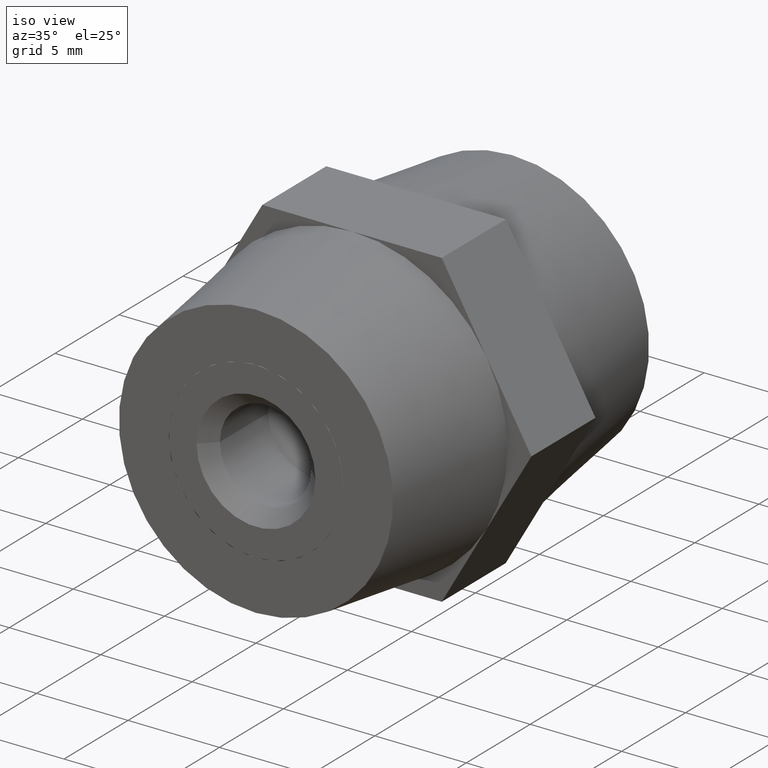
[diagram: clean part render]
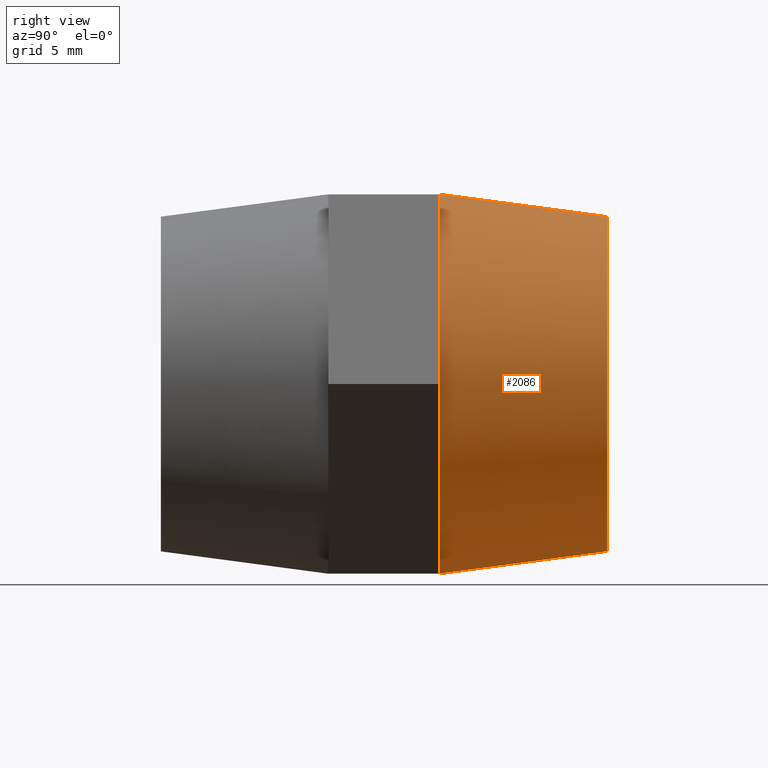
[diagram: tour spotlight — one face highlighted and labeled with its STEP entity id]
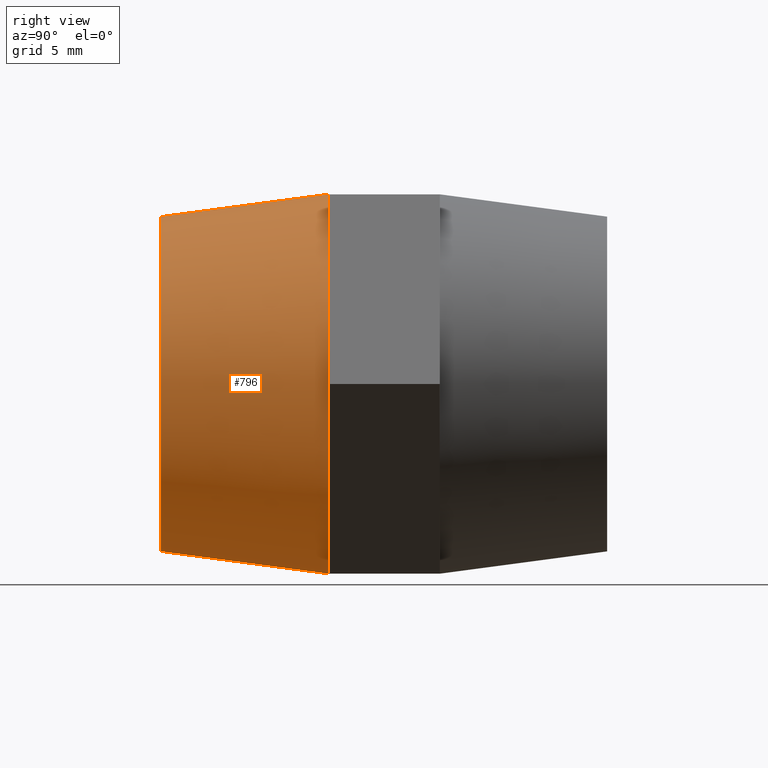
[diagram: tour spotlight — one face highlighted and labeled with its STEP entity id]
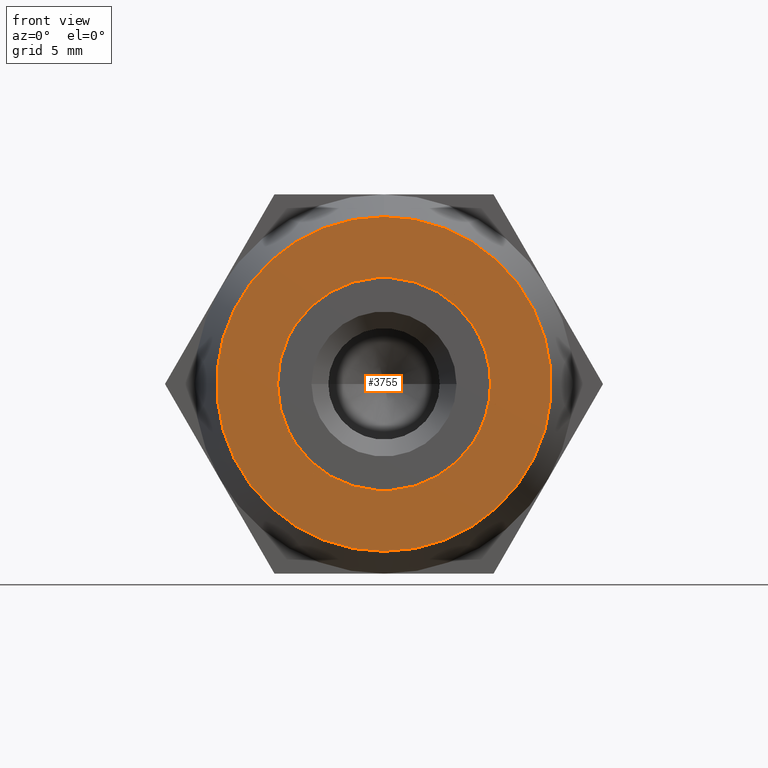
[diagram: tour spotlight — one face highlighted and labeled with its STEP entity id]
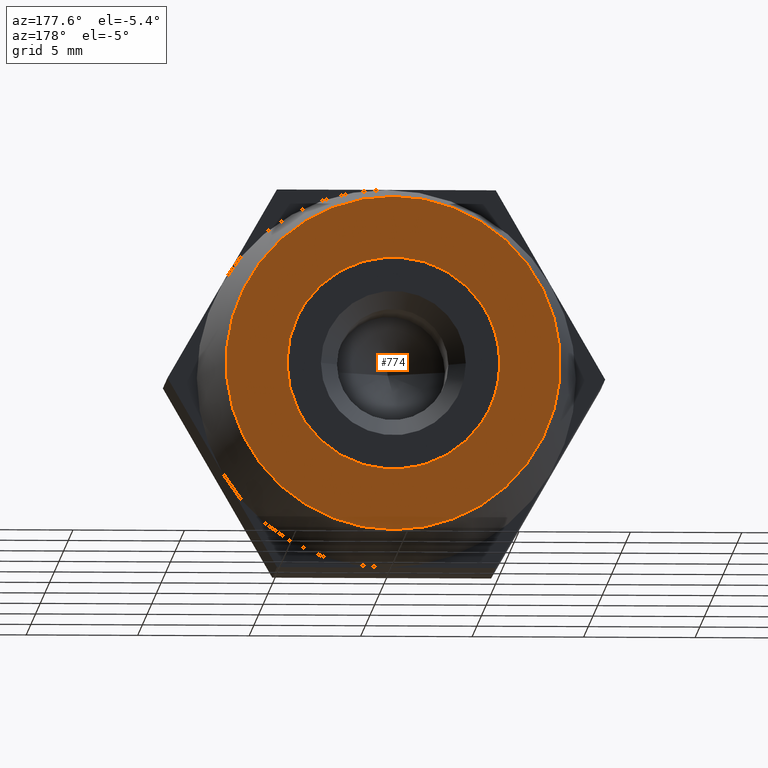
[diagram: tour spotlight — one face highlighted and labeled with its STEP entity id]
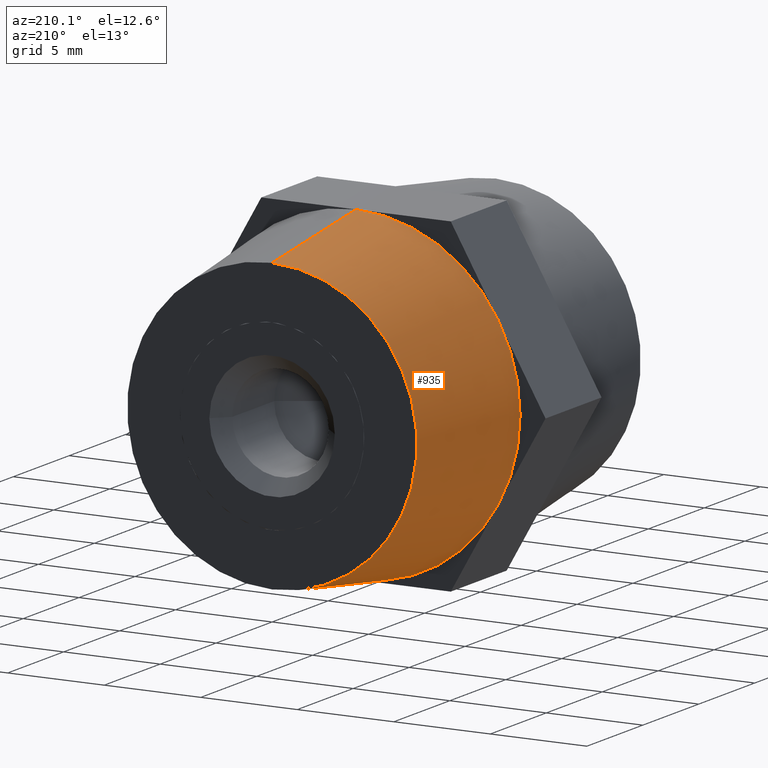
[diagram: tour spotlight — one face highlighted and labeled with its STEP entity id]
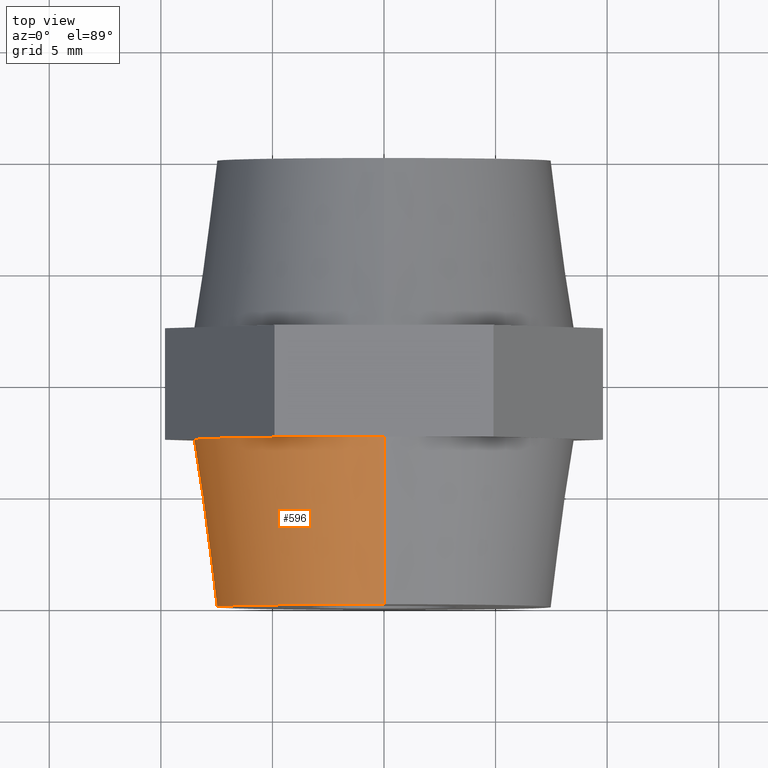
[diagram: tour spotlight — one face highlighted and labeled with its STEP entity id]
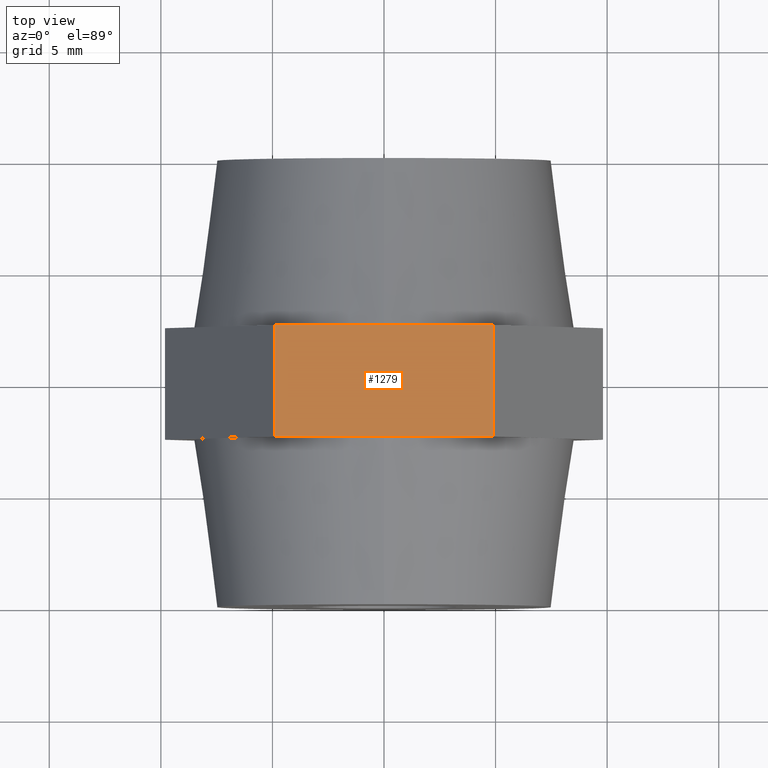
[diagram: tour spotlight — one face highlighted and labeled with its STEP entity id]
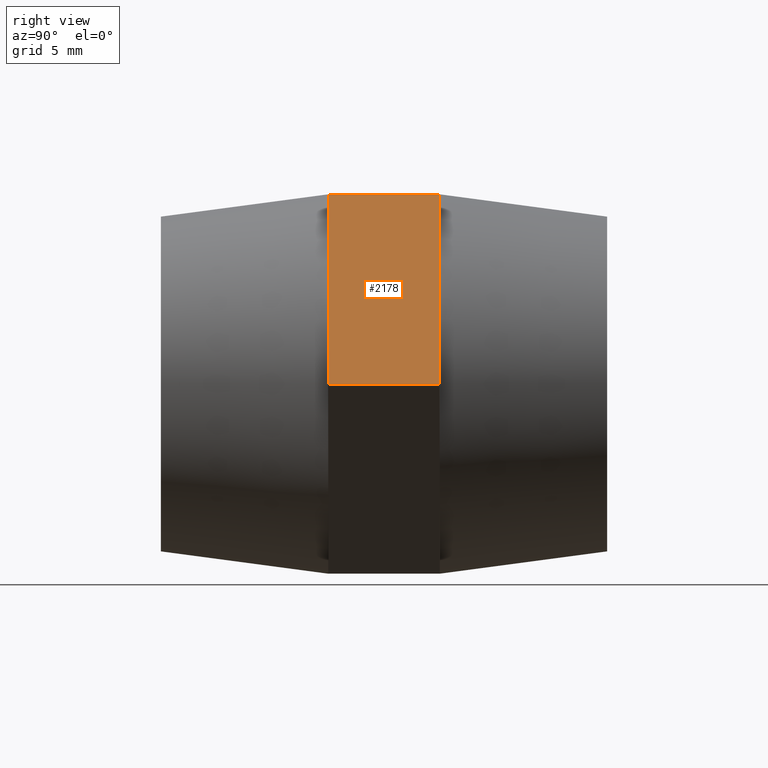
[diagram: tour spotlight — one face highlighted and labeled with its STEP entity id]
A machine part: a face-by-face anatomy tour. The part has 162 B-rep faces; the first image is the clean iso view, then the 8 largest visible faces are spotlighted one at a time (largest first), each with its STEP entity span.

Face 1 — right view, entity #2086. In plain terms, the highlighted conical surface has half-angle 7.595 deg.
Definition (entity closure, byte-faithful):
#17 = DIRECTION ( 'NONE',  ( 0.0000000000000000000, 1.000000000000000000, 0.0000000000000000000 ) ) ;
#30 = ORIENTED_EDGE ( 'NONE', *, *, #1495, .F. ) ;
#138 = DIRECTION ( 'NONE',  ( 0.0000000000000000000, 1.000000000000000000, 0.0000000000000000000 ) ) ;
#169 = DIRECTION ( 'NONE',  ( 0.0000000000000000000, 0.0000000000000000000, 1.000000000000000000 ) ) ;
#279 = AXIS2_PLACEMENT_3D ( 'NONE', #564, #864, #2947 ) ;
#303 = CARTESIAN_POINT ( 'NONE',  ( 9.797174393178825700E-016, 10.00000000000000000, 7.500000000000000000 ) ) ;
#498 = CARTESIAN_POINT ( 'NONE',  ( 0.0000000000000000000, 2.500000000000000000, 0.0000000000000000000 ) ) ;
#564 = CARTESIAN_POINT ( 'NONE',  ( 0.0000000000000000000, 10.00000000000000000, 0.0000000000000000000 ) ) ;
#660 = LINE ( 'NONE', #2397, #3558 ) ;
#720 = AXIS2_PLACEMENT_3D ( 'NONE', #1864, #138, #1610 ) ;
#835 = ORIENTED_EDGE ( 'NONE', *, *, #2571, .T. ) ;
#864 = DIRECTION ( 'NONE',  ( 0.0000000000000000000, 1.000000000000000000, 0.0000000000000000000 ) ) ;
#926 = VERTEX_POINT ( 'NONE', #1880 ) ;
#992 = AXIS2_PLACEMENT_3D ( 'NONE', #3620, #1544, #3024 ) ;
#1125 = EDGE_CURVE ( 'NONE', #1895, #1674, #1331, .T. ) ;
#1174 = CARTESIAN_POINT ( 'NONE',  ( 7.361215932167730200, 2.500000000000000000, -4.250000000000000000 ) ) ;
#1226 = CONICAL_SURFACE ( 'NONE', #992, 7.500000000000000000, 0.1325515322966740500 ) ;
#1331 = LINE ( 'NONE', #2730, #3747 ) ;
#1495 = EDGE_CURVE ( 'NONE', #926, #1624, #660, .T. ) ;
#1529 = DIRECTION ( 'NONE',  ( 0.0000000000000000000, 0.0000000000000000000, 1.000000000000000000 ) ) ;
#1544 = DIRECTION ( 'NONE',  ( 0.0000000000000000000, -1.000000000000000000, 0.0000000000000000000 ) ) ;
#1610 = DIRECTION ( 'NONE',  ( 0.0000000000000000000, 0.0000000000000000000, 1.000000000000000000 ) ) ;
#1624 = VERTEX_POINT ( 'NONE', #3351 ) ;
#1674 = VERTEX_POINT ( 'NONE', #2555 ) ;
#1787 = DIRECTION ( 'NONE',  ( 0.0000000000000000000, -0.9912279006826346700, -0.1321637200910179600 ) ) ;
#1864 = CARTESIAN_POINT ( 'NONE',  ( 0.0000000000000000000, 2.500000000000000000, 0.0000000000000000000 ) ) ;
#1880 = CARTESIAN_POINT ( 'NONE',  ( 0.0000000000000000000, 10.00000000000000000, -7.500000000000000000 ) ) ;
#1895 = VERTEX_POINT ( 'NONE', #303 ) ;
#1925 = FACE_OUTER_BOUND ( 'NONE', #3170, .T. ) ;
#1967 = EDGE_CURVE ( 'NONE', #1895, #926, #2439, .T. ) ;
#2060 = EDGE_CURVE ( 'NONE', #2840, #3218, #3788, .T. ) ;
#2086 = ADVANCED_FACE ( 'NONE', ( #1925 ), #1226, .T. ) ;
#2374 = AXIS2_PLACEMENT_3D ( 'NONE', #3333, #17, #1529 ) ;
#2397 = CARTESIAN_POINT ( 'NONE',  ( 0.0000000000000000000, 10.00000000000000000, -7.500000000000000000 ) ) ;
#2439 = CIRCLE ( 'NONE', #279, 7.500000000000000000 ) ;
#2555 = CARTESIAN_POINT ( 'NONE',  ( -1.502314598737160000E-015, 2.500000000000000000, 8.500000000000000000 ) ) ;
#2571 = EDGE_CURVE ( 'NONE', #3218, #1624, #3635, .T. ) ;
#2730 = CARTESIAN_POINT ( 'NONE',  ( 9.184850993605147900E-016, 10.00000000000000000, 7.500000000000000000 ) ) ;
#2840 = VERTEX_POINT ( 'NONE', #3048 ) ;
#2899 = EDGE_CURVE ( 'NONE', #1674, #2840, #3187, .T. ) ;
#2910 = ORIENTED_EDGE ( 'NONE', *, *, #1967, .F. ) ;
#2947 = DIRECTION ( 'NONE',  ( 0.0000000000000000000, 0.0000000000000000000, 1.000000000000000000 ) ) ;
#3024 = DIRECTION ( 'NONE',  ( 0.0000000000000000000, 0.0000000000000000000, -1.000000000000000000 ) ) ;
#3048 = CARTESIAN_POINT ( 'NONE',  ( 7.361215932167730200, 2.500000000000000000, 4.250000000000000000 ) ) ;
#3170 = EDGE_LOOP ( 'NONE', ( #2910, #3766, #3564, #3251, #835, #30 ) ) ;
#3187 = CIRCLE ( 'NONE', #720, 8.500000000000000000 ) ;
#3218 = VERTEX_POINT ( 'NONE', #1174 ) ;
#3251 = ORIENTED_EDGE ( 'NONE', *, *, #2060, .T. ) ;
#3333 = CARTESIAN_POINT ( 'NONE',  ( 0.0000000000000000000, 2.500000000000000000, 0.0000000000000000000 ) ) ;
#3351 = CARTESIAN_POINT ( 'NONE',  ( 0.0000000000000000000, 2.500000000000000000, -8.500000000000000000 ) ) ;
#3353 = AXIS2_PLACEMENT_3D ( 'NONE', #498, #3759, #169 ) ;
#3558 = VECTOR ( 'NONE', #1787, 1000.000000000000100 ) ;
#3564 = ORIENTED_EDGE ( 'NONE', *, *, #2899, .T. ) ;
#3620 = CARTESIAN_POINT ( 'NONE',  ( 0.0000000000000000000, 10.00000000000000000, 0.0000000000000000000 ) ) ;
#3635 = CIRCLE ( 'NONE', #3353, 8.500000000000000000 ) ;
#3728 = DIRECTION ( 'NONE',  ( 1.618538767728719100E-017, -0.9912279006826346700, 0.1321637200910179600 ) ) ;
#3747 = VECTOR ( 'NONE', #3728, 1000.000000000000100 ) ;
#3759 = DIRECTION ( 'NONE',  ( 0.0000000000000000000, 1.000000000000000000, 0.0000000000000000000 ) ) ;
#3766 = ORIENTED_EDGE ( 'NONE', *, *, #1125, .T. ) ;
#3788 = CIRCLE ( 'NONE', #2374, 8.500000000000000000 ) ;

Face 2 — right view, entity #796. In plain terms, the highlighted conical surface has half-angle 7.595 deg.
Definition (entity closure, byte-faithful):
#35 = CARTESIAN_POINT ( 'NONE',  ( 0.0000000000000000000, -2.500000000000000000, 8.500000000000000000 ) ) ;
#71 = ORIENTED_EDGE ( 'NONE', *, *, #3103, .F. ) ;
#118 = ORIENTED_EDGE ( 'NONE', *, *, #1644, .T. ) ;
#121 = AXIS2_PLACEMENT_3D ( 'NONE', #1607, #1058, #2839 ) ;
#208 = LINE ( 'NONE', #409, #2581 ) ;
#248 = DIRECTION ( 'NONE',  ( 0.0000000000000000000, 0.0000000000000000000, 1.000000000000000000 ) ) ;
#250 = AXIS2_PLACEMENT_3D ( 'NONE', #1373, #3688, #3405 ) ;
#319 = ORIENTED_EDGE ( 'NONE', *, *, #3492, .F. ) ;
#332 = CIRCLE ( 'NONE', #250, 7.500000000000000000 ) ;
#354 = VERTEX_POINT ( 'NONE', #2675 ) ;
#409 = CARTESIAN_POINT ( 'NONE',  ( 1.040949779275250100E-015, -2.500000000000000000, -8.500000000000000000 ) ) ;
#598 = VERTEX_POINT ( 'NONE', #3139 ) ;
#729 = VERTEX_POINT ( 'NONE', #1412 ) ;
#768 = DIRECTION ( 'NONE',  ( 0.0000000000000000000, 0.0000000000000000000, 1.000000000000000000 ) ) ;
#775 = VECTOR ( 'NONE', #1234, 1000.000000000000100 ) ;
#796 = ADVANCED_FACE ( 'NONE', ( #3601 ), #1000, .T. ) ;
#810 = EDGE_CURVE ( 'NONE', #2912, #354, #2446, .T. ) ;
#837 = CARTESIAN_POINT ( 'NONE',  ( 7.361215932167730200, -2.500000000000000000, -4.250000000000000000 ) ) ;
#855 = DIRECTION ( 'NONE',  ( 0.0000000000000000000, 1.000000000000000000, 0.0000000000000000000 ) ) ;
#1000 = CONICAL_SURFACE ( 'NONE', #2206, 8.500000000000000000, 0.1325515322966744100 ) ;
#1058 = DIRECTION ( 'NONE',  ( 0.0000000000000000000, 1.000000000000000000, 0.0000000000000000000 ) ) ;
#1129 = AXIS2_PLACEMENT_3D ( 'NONE', #2547, #3432, #768 ) ;
#1149 = EDGE_CURVE ( 'NONE', #3654, #2733, #2874, .T. ) ;
#1234 = DIRECTION ( 'NONE',  ( 0.0000000000000000000, 0.9912279006826346700, 0.1321637200910183700 ) ) ;
#1301 = ORIENTED_EDGE ( 'NONE', *, *, #2472, .T. ) ;
#1373 = CARTESIAN_POINT ( 'NONE',  ( 0.0000000000000000000, -10.00000000000000000, 0.0000000000000000000 ) ) ;
#1412 = CARTESIAN_POINT ( 'NONE',  ( 0.0000000000000000000, -2.500000000000000000, -8.500000000000000000 ) ) ;
#1519 = ORIENTED_EDGE ( 'NONE', *, *, #1149, .F. ) ;
#1607 = CARTESIAN_POINT ( 'NONE',  ( 0.0000000000000000000, -2.500000000000000000, 0.0000000000000000000 ) ) ;
#1644 = EDGE_CURVE ( 'NONE', #2912, #598, #332, .T. ) ;
#1709 = CARTESIAN_POINT ( 'NONE',  ( 0.0000000000000000000, -2.500000000000000000, 0.0000000000000000000 ) ) ;
#1806 = DIRECTION ( 'NONE',  ( 0.0000000000000000000, 0.0000000000000000000, 1.000000000000000000 ) ) ;
#1837 = CARTESIAN_POINT ( 'NONE',  ( 0.0000000000000000000, -2.500000000000000000, 0.0000000000000000000 ) ) ;
#1912 = CARTESIAN_POINT ( 'NONE',  ( 0.0000000000000000000, -10.00000000000000000, 7.500000000000000000 ) ) ;
#2096 = ORIENTED_EDGE ( 'NONE', *, *, #810, .F. ) ;
#2206 = AXIS2_PLACEMENT_3D ( 'NONE', #1837, #3310, #1806 ) ;
#2300 = CARTESIAN_POINT ( 'NONE',  ( 7.361215932167730200, -2.500000000000000000, 4.250000000000000000 ) ) ;
#2446 = LINE ( 'NONE', #35, #775 ) ;
#2472 = EDGE_CURVE ( 'NONE', #598, #729, #208, .T. ) ;
#2547 = CARTESIAN_POINT ( 'NONE',  ( 0.0000000000000000000, -2.500000000000000000, 0.0000000000000000000 ) ) ;
#2581 = VECTOR ( 'NONE', #2816, 1000.000000000000100 ) ;
#2662 = EDGE_LOOP ( 'NONE', ( #118, #1301, #71, #1519, #319, #2096 ) ) ;
#2675 = CARTESIAN_POINT ( 'NONE',  ( -1.502314598737160000E-015, -2.500000000000000000, 8.500000000000000000 ) ) ;
#2733 = VERTEX_POINT ( 'NONE', #837 ) ;
#2816 = DIRECTION ( 'NONE',  ( 1.618538767728723700E-017, 0.9912279006826346700, -0.1321637200910183700 ) ) ;
#2839 = DIRECTION ( 'NONE',  ( 0.0000000000000000000, 0.0000000000000000000, 1.000000000000000000 ) ) ;
#2874 = CIRCLE ( 'NONE', #3624, 8.500000000000000000 ) ;
#2912 = VERTEX_POINT ( 'NONE', #1912 ) ;
#3103 = EDGE_CURVE ( 'NONE', #2733, #729, #3787, .T. ) ;
#3139 = CARTESIAN_POINT ( 'NONE',  ( 9.797174393178825700E-016, -10.00000000000000000, -7.500000000000000900 ) ) ;
#3310 = DIRECTION ( 'NONE',  ( 0.0000000000000000000, 1.000000000000000000, 0.0000000000000000000 ) ) ;
#3314 = CIRCLE ( 'NONE', #121, 8.500000000000000000 ) ;
#3405 = DIRECTION ( 'NONE',  ( 0.0000000000000000000, 0.0000000000000000000, 1.000000000000000000 ) ) ;
#3432 = DIRECTION ( 'NONE',  ( 0.0000000000000000000, 1.000000000000000000, 0.0000000000000000000 ) ) ;
#3492 = EDGE_CURVE ( 'NONE', #354, #3654, #3314, .T. ) ;
#3601 = FACE_OUTER_BOUND ( 'NONE', #2662, .T. ) ;
#3624 = AXIS2_PLACEMENT_3D ( 'NONE', #1709, #855, #248 ) ;
#3654 = VERTEX_POINT ( 'NONE', #2300 ) ;
#3688 = DIRECTION ( 'NONE',  ( 0.0000000000000000000, 1.000000000000000000, 0.0000000000000000000 ) ) ;
#3787 = CIRCLE ( 'NONE', #1129, 8.500000000000000000 ) ;

Face 3 — front view, entity #3755. In plain terms, the highlighted planar face has unit normal (0, -1, 0).
Definition (entity closure, byte-faithful):
#62 = CARTESIAN_POINT ( 'NONE',  ( -5.999445985523400400, -10.00000000000000000, 0.8663452641916380400 ) ) ;
#68 = CARTESIAN_POINT ( 'NONE',  ( -4.278839962089940700, -10.00000000000000000, 2.113831788204209700 ) ) ;
#89 = CARTESIAN_POINT ( 'NONE',  ( 4.278839962089860700, -10.00000000000000000, 2.113831788204365100 ) ) ;
#178 = CARTESIAN_POINT ( 'NONE',  ( -1.734723475976804900E-015, -10.00000000000000000, -1.734723475976804900E-015 ) ) ;
#250 = AXIS2_PLACEMENT_3D ( 'NONE', #1373, #3688, #3405 ) ;
#256 = LINE ( 'NONE', #62, #1821 ) ;
#312 = VERTEX_POINT ( 'NONE', #1388 ) ;
#326 = ORIENTED_EDGE ( 'NONE', *, *, #1411, .T. ) ;
#332 = CIRCLE ( 'NONE', #250, 7.500000000000000000 ) ;
#394 = CARTESIAN_POINT ( 'NONE',  ( -0.3087879531335669900, -10.00000000000016000, -4.762500000000000200 ) ) ;
#407 = AXIS2_PLACEMENT_3D ( 'NONE', #1265, #3337, #1633 ) ;
#418 = DIRECTION ( 'NONE',  ( -1.776356839400250500E-015, 0.0000000000000000000, -1.000000000000000000 ) ) ;
#441 = DIRECTION ( 'NONE',  ( 0.0000000000000000000, 0.0000000000000000000, -1.000000000000000000 ) ) ;
#487 = LINE ( 'NONE', #3112, #1374 ) ;
#512 = ORIENTED_EDGE ( 'NONE', *, *, #3613, .T. ) ;
#538 = DIRECTION ( 'NONE',  ( -0.0000000000000000000, 1.000000000000000000, -0.0000000000000000000 ) ) ;
#557 = AXIS2_PLACEMENT_3D ( 'NONE', #2026, #538, #2065 ) ;
#558 = CARTESIAN_POINT ( 'NONE',  ( -1.734723475976804900E-015, -10.00000000000000000, -1.734723475976804900E-015 ) ) ;
#566 = DIRECTION ( 'NONE',  ( 0.0000000000000000000, 0.0000000000000000000, -1.000000000000000000 ) ) ;
#571 = AXIS2_PLACEMENT_3D ( 'NONE', #3346, #2464, #418 ) ;
#598 = VERTEX_POINT ( 'NONE', #3139 ) ;
#657 = EDGE_CURVE ( 'NONE', #598, #2912, #1506, .T. ) ;
#699 = CARTESIAN_POINT ( 'NONE',  ( 0.3087879531329260100, -10.00000000000000000, 4.762500000000000200 ) ) ;
#712 = VECTOR ( 'NONE', #2919, 1000.000000000000100 ) ;
#719 = CARTESIAN_POINT ( 'NONE',  ( -1.734723475976804900E-015, -10.00000000000000000, -1.734723475976804900E-015 ) ) ;
#825 = ORIENTED_EDGE ( 'NONE', *, *, #3497, .T. ) ;
#830 = ORIENTED_EDGE ( 'NONE', *, *, #1185, .T. ) ;
#854 = DIRECTION ( 'NONE',  ( 0.0000000000000000000, -1.000000000000000000, 0.0000000000000000000 ) ) ;
#859 = CIRCLE ( 'NONE', #2394, 4.772500000000000000 ) ;
#868 = CARTESIAN_POINT ( 'NONE',  ( -4.278839962090105000, -10.00000000000000000, -2.113831788203874900 ) ) ;
#880 = VERTEX_POINT ( 'NONE', #89 ) ;
#894 = CARTESIAN_POINT ( 'NONE',  ( -7.500000000000000000, -10.00000000000000000, 0.0000000000000000000 ) ) ;
#909 = ORIENTED_EDGE ( 'NONE', *, *, #1259, .T. ) ;
#994 = LINE ( 'NONE', #3207, #3241 ) ;
#1002 = CARTESIAN_POINT ( 'NONE',  ( 2.249445985523425200, -10.00000000000000000, -5.628845264191669500 ) ) ;
#1114 = VERTEX_POINT ( 'NONE', #3586 ) ;
#1185 = EDGE_CURVE ( 'NONE', #3577, #3818, #3146, .T. ) ;
#1216 = CARTESIAN_POINT ( 'NONE',  ( -7.500000000000000000, -10.00000000000000000, 4.762500000000000200 ) ) ;
#1229 = DIRECTION ( 'NONE',  ( 1.000000000000000000, 0.0000000000000000000, -1.261786539621752000E-015 ) ) ;
#1259 = EDGE_CURVE ( 'NONE', #1601, #1114, #3320, .T. ) ;
#1265 = CARTESIAN_POINT ( 'NONE',  ( 0.0000000000000000000, -10.00000000000000000, 0.0000000000000000000 ) ) ;
#1299 = VERTEX_POINT ( 'NONE', #68 ) ;
#1311 = DIRECTION ( 'NONE',  ( -0.5000000000000003300, 0.0000000000000000000, -0.8660254037844383700 ) ) ;
#1366 = CARTESIAN_POINT ( 'NONE',  ( 2.249445985523410100, -10.00000000000000000, 5.628845264191680200 ) ) ;
#1373 = CARTESIAN_POINT ( 'NONE',  ( 0.0000000000000000000, -10.00000000000000000, 0.0000000000000000000 ) ) ;
#1374 = VECTOR ( 'NONE', #1618, 1000.000000000000000 ) ;
#1388 = CARTESIAN_POINT ( 'NONE',  ( -0.3087879531329175100, -10.00000000000000000, 4.762500000000000200 ) ) ;
#1407 = DIRECTION ( 'NONE',  ( 0.4999999999999998900, 0.0000000000000000000, 0.8660254037844387100 ) ) ;
#1411 = EDGE_CURVE ( 'NONE', #1299, #2934, #994, .T. ) ;
#1437 = VERTEX_POINT ( 'NONE', #3302 ) ;
#1456 = CARTESIAN_POINT ( 'NONE',  ( 4.278839962089835000, -10.00000000000000000, -2.113831788204410000 ) ) ;
#1498 = LINE ( 'NONE', #1366, #712 ) ;
#1506 = CIRCLE ( 'NONE', #407, 7.500000000000000000 ) ;
#1567 = VERTEX_POINT ( 'NONE', #394 ) ;
#1591 = EDGE_CURVE ( 'NONE', #3200, #3820, #256, .T. ) ;
#1593 = DIRECTION ( 'NONE',  ( -0.0000000000000000000, 1.000000000000000000, -0.0000000000000000000 ) ) ;
#1601 = VERTEX_POINT ( 'NONE', #699 ) ;
#1612 = AXIS2_PLACEMENT_3D ( 'NONE', #894, #854, #566 ) ;
#1618 = DIRECTION ( 'NONE',  ( -1.000000000000000000, 0.0000000000000000000, 0.0000000000000000000 ) ) ;
#1633 = DIRECTION ( 'NONE',  ( 0.0000000000000000000, 0.0000000000000000000, 1.000000000000000000 ) ) ;
#1644 = EDGE_CURVE ( 'NONE', #2912, #598, #332, .T. ) ;
#1693 = PLANE ( 'NONE',  #1612 ) ;
#1696 = DIRECTION ( 'NONE',  ( -0.0000000000000000000, 1.000000000000000000, -0.0000000000000000000 ) ) ;
#1728 = CIRCLE ( 'NONE', #557, 4.772500000000000000 ) ;
#1765 = CARTESIAN_POINT ( 'NONE',  ( 0.3087879531335345200, -10.00000000000000000, -4.762500000000000200 ) ) ;
#1768 = EDGE_CURVE ( 'NONE', #3818, #1567, #487, .T. ) ;
#1821 = VECTOR ( 'NONE', #3632, 1000.000000000000000 ) ;
#1835 = ORIENTED_EDGE ( 'NONE', *, *, #1768, .T. ) ;
#1904 = ORIENTED_EDGE ( 'NONE', *, *, #657, .F. ) ;
#1912 = CARTESIAN_POINT ( 'NONE',  ( 0.0000000000000000000, -10.00000000000000000, 7.500000000000000000 ) ) ;
#1953 = AXIS2_PLACEMENT_3D ( 'NONE', #178, #1977, #3169 ) ;
#1977 = DIRECTION ( 'NONE',  ( -0.0000000000000000000, 1.000000000000000000, -0.0000000000000000000 ) ) ;
#2026 = CARTESIAN_POINT ( 'NONE',  ( -1.734723475976804900E-015, -10.00000000000000000, -1.734723475976804900E-015 ) ) ;
#2058 = CARTESIAN_POINT ( 'NONE',  ( -1.734723475976804900E-015, -10.00000000000000000, -1.734723475976804900E-015 ) ) ;
#2063 = EDGE_CURVE ( 'NONE', #312, #1601, #2253, .T. ) ;
#2065 = DIRECTION ( 'NONE',  ( 0.0000000000000000000, 0.0000000000000000000, -1.000000000000000000 ) ) ;
#2201 = CARTESIAN_POINT ( 'NONE',  ( 3.970052008957019900, -10.00000000000000000, -2.648668211795644800 ) ) ;
#2245 = CARTESIAN_POINT ( 'NONE',  ( -1.734723475976804900E-015, -10.00000000000000000, -1.734723475976804900E-015 ) ) ;
#2253 = LINE ( 'NONE', #1216, #3593 ) ;
#2280 = ORIENTED_EDGE ( 'NONE', *, *, #3538, .T. ) ;
#2290 = EDGE_CURVE ( 'NONE', #1114, #880, #1498, .T. ) ;
#2346 = DIRECTION ( 'NONE',  ( -5.329070518200751400E-015, 0.0000000000000000000, -1.000000000000000000 ) ) ;
#2348 = CARTESIAN_POINT ( 'NONE',  ( -3.970052008956699700, -10.00000000000000000, -2.648668211796129800 ) ) ;
#2367 = EDGE_CURVE ( 'NONE', #880, #1437, #859, .T. ) ;
#2385 = ORIENTED_EDGE ( 'NONE', *, *, #3849, .T. ) ;
#2394 = AXIS2_PLACEMENT_3D ( 'NONE', #558, #1696, #2346 ) ;
#2408 = ORIENTED_EDGE ( 'NONE', *, *, #1591, .T. ) ;
#2428 = VECTOR ( 'NONE', #1311, 1000.000000000000100 ) ;
#2464 = DIRECTION ( 'NONE',  ( -0.0000000000000000000, 1.000000000000000000, -0.0000000000000000000 ) ) ;
#2493 = CARTESIAN_POINT ( 'NONE',  ( -3.970052008956904500, -10.00000000000000000, 2.648668211795819800 ) ) ;
#2498 = EDGE_LOOP ( 'NONE', ( #3383, #1904 ) ) ;
#2520 = AXIS2_PLACEMENT_3D ( 'NONE', #2245, #3413, #2852 ) ;
#2650 = DIRECTION ( 'NONE',  ( 0.0000000000000000000, 0.0000000000000000000, -1.000000000000000000 ) ) ;
#2678 = DIRECTION ( 'NONE',  ( -0.0000000000000000000, 1.000000000000000000, -0.0000000000000000000 ) ) ;
#2712 = VERTEX_POINT ( 'NONE', #1456 ) ;
#2717 = AXIS2_PLACEMENT_3D ( 'NONE', #2058, #2678, #2650 ) ;
#2789 = ORIENTED_EDGE ( 'NONE', *, *, #2290, .T. ) ;
#2808 = CIRCLE ( 'NONE', #2854, 4.772500000000000000 ) ;
#2852 = DIRECTION ( 'NONE',  ( -8.881784197001252300E-016, 0.0000000000000000000, -1.000000000000000000 ) ) ;
#2854 = AXIS2_PLACEMENT_3D ( 'NONE', #719, #1593, #441 ) ;
#2912 = VERTEX_POINT ( 'NONE', #1912 ) ;
#2919 = DIRECTION ( 'NONE',  ( 0.5000000000000003300, 0.0000000000000000000, -0.8660254037844383700 ) ) ;
#2934 = VERTEX_POINT ( 'NONE', #2493 ) ;
#2979 = ORIENTED_EDGE ( 'NONE', *, *, #2367, .T. ) ;
#3030 = FACE_BOUND ( 'NONE', #3290, .T. ) ;
#3112 = CARTESIAN_POINT ( 'NONE',  ( -7.500000000000000000, -10.00000000000000000, -4.762500000000000200 ) ) ;
#3129 = CIRCLE ( 'NONE', #1953, 4.772500000000000000 ) ;
#3139 = CARTESIAN_POINT ( 'NONE',  ( 9.797174393178825700E-016, -10.00000000000000000, -7.500000000000000900 ) ) ;
#3146 = CIRCLE ( 'NONE', #2717, 4.772500000000000000 ) ;
#3169 = DIRECTION ( 'NONE',  ( -2.664535259100375700E-015, 0.0000000000000000000, -1.000000000000000000 ) ) ;
#3200 = VERTEX_POINT ( 'NONE', #2348 ) ;
#3207 = CARTESIAN_POINT ( 'NONE',  ( -5.999445985523420800, -10.00000000000000000, -0.8663452641916259400 ) ) ;
#3231 = CIRCLE ( 'NONE', #2520, 4.772500000000000000 ) ;
#3241 = VECTOR ( 'NONE', #1407, 1000.000000000000000 ) ;
#3290 = EDGE_LOOP ( 'NONE', ( #512, #830, #1835, #825, #2408, #2385, #326, #2280, #3614, #909, #2789, #2979, #3664 ) ) ;
#3302 = CARTESIAN_POINT ( 'NONE',  ( 4.772499999999998200, -10.00000000000000000, -1.734723475976804900E-015 ) ) ;
#3320 = CIRCLE ( 'NONE', #571, 4.772500000000000000 ) ;
#3337 = DIRECTION ( 'NONE',  ( 0.0000000000000000000, 1.000000000000000000, 0.0000000000000000000 ) ) ;
#3346 = CARTESIAN_POINT ( 'NONE',  ( -1.734723475976804900E-015, -10.00000000000000000, -1.734723475976804900E-015 ) ) ;
#3383 = ORIENTED_EDGE ( 'NONE', *, *, #1644, .F. ) ;
#3405 = DIRECTION ( 'NONE',  ( 0.0000000000000000000, 0.0000000000000000000, 1.000000000000000000 ) ) ;
#3407 = FACE_OUTER_BOUND ( 'NONE', #2498, .T. ) ;
#3413 = DIRECTION ( 'NONE',  ( -0.0000000000000000000, 1.000000000000000000, -0.0000000000000000000 ) ) ;
#3497 = EDGE_CURVE ( 'NONE', #1567, #3200, #2808, .T. ) ;
#3538 = EDGE_CURVE ( 'NONE', #2934, #312, #3231, .T. ) ;
#3577 = VERTEX_POINT ( 'NONE', #2201 ) ;
#3586 = CARTESIAN_POINT ( 'NONE',  ( 3.970052008956985300, -10.00000000000000000, 2.648668211795695000 ) ) ;
#3593 = VECTOR ( 'NONE', #1229, 1000.000000000000000 ) ;
#3613 = EDGE_CURVE ( 'NONE', #2712, #3577, #3784, .T. ) ;
#3614 = ORIENTED_EDGE ( 'NONE', *, *, #2063, .T. ) ;
#3632 = DIRECTION ( 'NONE',  ( -0.4999999999999998900, 0.0000000000000000000, 0.8660254037844387100 ) ) ;
#3664 = ORIENTED_EDGE ( 'NONE', *, *, #3691, .T. ) ;
#3688 = DIRECTION ( 'NONE',  ( 0.0000000000000000000, 1.000000000000000000, 0.0000000000000000000 ) ) ;
#3691 = EDGE_CURVE ( 'NONE', #1437, #2712, #3129, .T. ) ;
#3755 = ADVANCED_FACE ( 'NONE', ( #3407, #3030 ), #1693, .T. ) ;
#3784 = LINE ( 'NONE', #1002, #2428 ) ;
#3818 = VERTEX_POINT ( 'NONE', #1765 ) ;
#3820 = VERTEX_POINT ( 'NONE', #868 ) ;
#3849 = EDGE_CURVE ( 'NONE', #3820, #1299, #1728, .T. ) ;

Face 4 — auxiliary view, entity #774. In plain terms, the highlighted planar face has unit normal (0, 1, 0).
Definition (entity closure, byte-faithful):
#7 = CARTESIAN_POINT ( 'NONE',  ( -0.3087879531335360200, 10.00000000000000000, -4.762500000000000200 ) ) ;
#57 = CARTESIAN_POINT ( 'NONE',  ( -4.278839962089839400, 10.00000000000000000, -2.113831788204410000 ) ) ;
#192 = DIRECTION ( 'NONE',  ( 0.0000000000000000000, 0.0000000000000000000, 1.000000000000000000 ) ) ;
#218 = EDGE_CURVE ( 'NONE', #399, #1965, #2833, .T. ) ;
#224 = AXIS2_PLACEMENT_3D ( 'NONE', #2863, #1116, #192 ) ;
#227 = EDGE_LOOP ( 'NONE', ( #679, #1569, #2606, #966, #589, #2882, #2609, #313, #2402, #593, #3535, #2097, #2569 ) ) ;
#228 = VERTEX_POINT ( 'NONE', #1606 ) ;
#246 = EDGE_CURVE ( 'NONE', #1965, #2797, #3648, .T. ) ;
#254 = CARTESIAN_POINT ( 'NONE',  ( -4.278839962089860700, 10.00000000000000000, 2.113831788204365100 ) ) ;
#279 = AXIS2_PLACEMENT_3D ( 'NONE', #564, #864, #2947 ) ;
#303 = CARTESIAN_POINT ( 'NONE',  ( 9.797174393178825700E-016, 10.00000000000000000, 7.500000000000000000 ) ) ;
#313 = ORIENTED_EDGE ( 'NONE', *, *, #2482, .T. ) ;
#357 = DIRECTION ( 'NONE',  ( 0.0000000000000000000, 0.0000000000000000000, 1.000000000000000000 ) ) ;
#366 = DIRECTION ( 'NONE',  ( -0.0000000000000000000, -1.000000000000000000, -0.0000000000000000000 ) ) ;
#371 = CARTESIAN_POINT ( 'NONE',  ( 0.0000000000000000000, 10.00000000000000000, 0.0000000000000000000 ) ) ;
#399 = VERTEX_POINT ( 'NONE', #254 ) ;
#400 = DIRECTION ( 'NONE',  ( 0.0000000000000000000, 0.0000000000000000000, 1.000000000000000000 ) ) ;
#425 = VECTOR ( 'NONE', #2575, 1000.000000000000000 ) ;
#439 = VERTEX_POINT ( 'NONE', #3293 ) ;
#564 = CARTESIAN_POINT ( 'NONE',  ( 0.0000000000000000000, 10.00000000000000000, 0.0000000000000000000 ) ) ;
#579 = VECTOR ( 'NONE', #3458, 1000.000000000000100 ) ;
#580 = CARTESIAN_POINT ( 'NONE',  ( 0.0000000000000000000, 10.00000000000000000, 0.0000000000000000000 ) ) ;
#582 = DIRECTION ( 'NONE',  ( 1.776356839400250500E-015, 0.0000000000000000000, 1.000000000000000000 ) ) ;
#589 = ORIENTED_EDGE ( 'NONE', *, *, #3717, .T. ) ;
#593 = ORIENTED_EDGE ( 'NONE', *, *, #626, .T. ) ;
#626 = EDGE_CURVE ( 'NONE', #439, #1798, #2726, .T. ) ;
#679 = ORIENTED_EDGE ( 'NONE', *, *, #1161, .T. ) ;
#697 = CARTESIAN_POINT ( 'NONE',  ( 3.970052008956690400, 10.00000000000000000, -2.648668211796140000 ) ) ;
#703 = DIRECTION ( 'NONE',  ( -0.0000000000000000000, -1.000000000000000000, -0.0000000000000000000 ) ) ;
#769 = LINE ( 'NONE', #1078, #579 ) ;
#774 = ADVANCED_FACE ( 'NONE', ( #821, #1334 ), #3229, .T. ) ;
#800 = DIRECTION ( 'NONE',  ( 0.0000000000000000000, 0.0000000000000000000, 1.000000000000000000 ) ) ;
#817 = LINE ( 'NONE', #2028, #1190 ) ;
#821 = FACE_OUTER_BOUND ( 'NONE', #3573, .T. ) ;
#827 = EDGE_CURVE ( 'NONE', #2333, #439, #3696, .T. ) ;
#864 = DIRECTION ( 'NONE',  ( 0.0000000000000000000, 1.000000000000000000, 0.0000000000000000000 ) ) ;
#926 = VERTEX_POINT ( 'NONE', #1880 ) ;
#966 = ORIENTED_EDGE ( 'NONE', *, *, #1270, .T. ) ;
#1051 = CARTESIAN_POINT ( 'NONE',  ( 2.249445985523425200, 10.00000000000000000, 5.628845264191660600 ) ) ;
#1078 = CARTESIAN_POINT ( 'NONE',  ( -5.999445985523440300, 10.00000000000000000, -0.8663452641916209500 ) ) ;
#1102 = ORIENTED_EDGE ( 'NONE', *, *, #1171, .T. ) ;
#1116 = DIRECTION ( 'NONE',  ( -0.0000000000000000000, -1.000000000000000000, -0.0000000000000000000 ) ) ;
#1118 = VERTEX_POINT ( 'NONE', #7 ) ;
#1161 = EDGE_CURVE ( 'NONE', #2797, #228, #817, .T. ) ;
#1171 = EDGE_CURVE ( 'NONE', #926, #1895, #2999, .T. ) ;
#1190 = VECTOR ( 'NONE', #1417, 1000.000000000000100 ) ;
#1213 = AXIS2_PLACEMENT_3D ( 'NONE', #2672, #2390, #800 ) ;
#1270 = EDGE_CURVE ( 'NONE', #2415, #2542, #2311, .T. ) ;
#1276 = CIRCLE ( 'NONE', #1295, 4.772500000000000000 ) ;
#1295 = AXIS2_PLACEMENT_3D ( 'NONE', #2207, #366, #2511 ) ;
#1323 = CIRCLE ( 'NONE', #3517, 4.772500000000000000 ) ;
#1334 = FACE_BOUND ( 'NONE', #227, .T. ) ;
#1417 = DIRECTION ( 'NONE',  ( 0.5000000000000003300, 0.0000000000000000000, -0.8660254037844383700 ) ) ;
#1431 = CARTESIAN_POINT ( 'NONE',  ( 4.278839962090110300, 10.00000000000000000, -2.113831788203859800 ) ) ;
#1452 = DIRECTION ( 'NONE',  ( 0.0000000000000000000, 0.0000000000000000000, 1.000000000000000000 ) ) ;
#1494 = LINE ( 'NONE', #1963, #425 ) ;
#1569 = ORIENTED_EDGE ( 'NONE', *, *, #3431, .T. ) ;
#1587 = DIRECTION ( 'NONE',  ( -1.000000000000000000, 0.0000000000000000000, -1.261786539621752000E-015 ) ) ;
#1606 = CARTESIAN_POINT ( 'NONE',  ( -3.970052008957019900, 10.00000000000000000, -2.648668211795644800 ) ) ;
#1630 = CARTESIAN_POINT ( 'NONE',  ( -3.970052008956985300, 10.00000000000000000, 2.648668211795695000 ) ) ;
#1704 = VERTEX_POINT ( 'NONE', #3095 ) ;
#1779 = AXIS2_PLACEMENT_3D ( 'NONE', #580, #2319, #1452 ) ;
#1794 = EDGE_CURVE ( 'NONE', #1118, #2415, #3556, .T. ) ;
#1798 = VERTEX_POINT ( 'NONE', #1630 ) ;
#1814 = DIRECTION ( 'NONE',  ( 0.0000000000000000000, 0.0000000000000000000, 1.000000000000000000 ) ) ;
#1865 = CARTESIAN_POINT ( 'NONE',  ( -7.500000000000000000, 10.00000000000000000, 4.762500000000000200 ) ) ;
#1871 = DIRECTION ( 'NONE',  ( -0.0000000000000000000, -1.000000000000000000, -0.0000000000000000000 ) ) ;
#1880 = CARTESIAN_POINT ( 'NONE',  ( 0.0000000000000000000, 10.00000000000000000, -7.500000000000000000 ) ) ;
#1889 = CARTESIAN_POINT ( 'NONE',  ( 0.0000000000000000000, 10.00000000000000000, 0.0000000000000000000 ) ) ;
#1893 = VERTEX_POINT ( 'NONE', #2342 ) ;
#1895 = VERTEX_POINT ( 'NONE', #303 ) ;
#1963 = CARTESIAN_POINT ( 'NONE',  ( 2.249445985523410100, 10.00000000000000000, -5.628845264191640200 ) ) ;
#1965 = VERTEX_POINT ( 'NONE', #3279 ) ;
#1967 = EDGE_CURVE ( 'NONE', #1895, #926, #2439, .T. ) ;
#2028 = CARTESIAN_POINT ( 'NONE',  ( -5.999445985523440300, 10.00000000000000000, 0.8663452641916199500 ) ) ;
#2071 = LINE ( 'NONE', #1051, #2691 ) ;
#2097 = ORIENTED_EDGE ( 'NONE', *, *, #218, .T. ) ;
#2135 = AXIS2_PLACEMENT_3D ( 'NONE', #2515, #3622, #357 ) ;
#2207 = CARTESIAN_POINT ( 'NONE',  ( 0.0000000000000000000, 10.00000000000000000, 0.0000000000000000000 ) ) ;
#2311 = CIRCLE ( 'NONE', #3581, 4.772500000000000000 ) ;
#2319 = DIRECTION ( 'NONE',  ( 0.0000000000000000000, 1.000000000000000000, 0.0000000000000000000 ) ) ;
#2333 = VERTEX_POINT ( 'NONE', #2622 ) ;
#2342 = CARTESIAN_POINT ( 'NONE',  ( 4.278839962089940700, 10.00000000000000000, 2.113831788204205300 ) ) ;
#2354 = CIRCLE ( 'NONE', #3361, 4.772500000000000000 ) ;
#2372 = DIRECTION ( 'NONE',  ( -0.0000000000000000000, -1.000000000000000000, -0.0000000000000000000 ) ) ;
#2390 = DIRECTION ( 'NONE',  ( 0.0000000000000000000, 1.000000000000000000, 0.0000000000000000000 ) ) ;
#2402 = ORIENTED_EDGE ( 'NONE', *, *, #827, .T. ) ;
#2415 = VERTEX_POINT ( 'NONE', #3544 ) ;
#2439 = CIRCLE ( 'NONE', #279, 7.500000000000000000 ) ;
#2477 = CARTESIAN_POINT ( 'NONE',  ( 0.0000000000000000000, 10.00000000000000000, 0.0000000000000000000 ) ) ;
#2482 = EDGE_CURVE ( 'NONE', #1704, #2333, #1276, .T. ) ;
#2511 = DIRECTION ( 'NONE',  ( 0.0000000000000000000, 0.0000000000000000000, 1.000000000000000000 ) ) ;
#2515 = CARTESIAN_POINT ( 'NONE',  ( 0.0000000000000000000, 10.00000000000000000, 0.0000000000000000000 ) ) ;
#2542 = VERTEX_POINT ( 'NONE', #697 ) ;
#2564 = EDGE_CURVE ( 'NONE', #1893, #1704, #2071, .T. ) ;
#2569 = ORIENTED_EDGE ( 'NONE', *, *, #246, .T. ) ;
#2575 = DIRECTION ( 'NONE',  ( 0.4999999999999998900, 0.0000000000000000000, 0.8660254037844387100 ) ) ;
#2606 = ORIENTED_EDGE ( 'NONE', *, *, #1794, .T. ) ;
#2609 = ORIENTED_EDGE ( 'NONE', *, *, #2564, .T. ) ;
#2622 = CARTESIAN_POINT ( 'NONE',  ( 0.3087879531329429900, 10.00000000000000000, 4.762500000000000200 ) ) ;
#2672 = CARTESIAN_POINT ( 'NONE',  ( -7.500000000000000000, 10.00000000000000000, 0.0000000000000000000 ) ) ;
#2691 = VECTOR ( 'NONE', #3137, 1000.000000000000000 ) ;
#2692 = EDGE_CURVE ( 'NONE', #1798, #399, #769, .T. ) ;
#2726 = CIRCLE ( 'NONE', #2135, 4.772500000000000000 ) ;
#2797 = VERTEX_POINT ( 'NONE', #57 ) ;
#2833 = CIRCLE ( 'NONE', #3455, 4.772500000000000000 ) ;
#2863 = CARTESIAN_POINT ( 'NONE',  ( 0.0000000000000000000, 10.00000000000000000, 0.0000000000000000000 ) ) ;
#2882 = ORIENTED_EDGE ( 'NONE', *, *, #3330, .T. ) ;
#2924 = VECTOR ( 'NONE', #1587, 1000.000000000000000 ) ;
#2947 = DIRECTION ( 'NONE',  ( 0.0000000000000000000, 0.0000000000000000000, 1.000000000000000000 ) ) ;
#2999 = CIRCLE ( 'NONE', #1779, 7.500000000000000000 ) ;
#3095 = CARTESIAN_POINT ( 'NONE',  ( 3.970052008956900500, 10.00000000000000000, 2.648668211795830000 ) ) ;
#3137 = DIRECTION ( 'NONE',  ( -0.4999999999999998900, 0.0000000000000000000, 0.8660254037844387100 ) ) ;
#3229 = PLANE ( 'NONE',  #1213 ) ;
#3265 = VERTEX_POINT ( 'NONE', #1431 ) ;
#3279 = CARTESIAN_POINT ( 'NONE',  ( -4.772500000000000000, 10.00000000000000000, 0.0000000000000000000 ) ) ;
#3293 = CARTESIAN_POINT ( 'NONE',  ( -0.3087879531329550400, 10.00000000000000000, 4.762500000000000200 ) ) ;
#3330 = EDGE_CURVE ( 'NONE', #3265, #1893, #2354, .T. ) ;
#3354 = DIRECTION ( 'NONE',  ( -1.776356839400250500E-015, 0.0000000000000000000, 1.000000000000000000 ) ) ;
#3361 = AXIS2_PLACEMENT_3D ( 'NONE', #3862, #2372, #582 ) ;
#3427 = DIRECTION ( 'NONE',  ( -0.0000000000000000000, -1.000000000000000000, -0.0000000000000000000 ) ) ;
#3431 = EDGE_CURVE ( 'NONE', #228, #1118, #1323, .T. ) ;
#3455 = AXIS2_PLACEMENT_3D ( 'NONE', #1889, #3427, #400 ) ;
#3458 = DIRECTION ( 'NONE',  ( -0.5000000000000003300, 0.0000000000000000000, -0.8660254037844383700 ) ) ;
#3517 = AXIS2_PLACEMENT_3D ( 'NONE', #371, #1871, #1814 ) ;
#3535 = ORIENTED_EDGE ( 'NONE', *, *, #2692, .T. ) ;
#3544 = CARTESIAN_POINT ( 'NONE',  ( 0.3087879531335650000, 10.00000000000016000, -4.762500000000000200 ) ) ;
#3549 = ORIENTED_EDGE ( 'NONE', *, *, #1967, .T. ) ;
#3556 = LINE ( 'NONE', #3721, #3689 ) ;
#3573 = EDGE_LOOP ( 'NONE', ( #1102, #3549 ) ) ;
#3581 = AXIS2_PLACEMENT_3D ( 'NONE', #2477, #703, #3354 ) ;
#3622 = DIRECTION ( 'NONE',  ( -0.0000000000000000000, -1.000000000000000000, -0.0000000000000000000 ) ) ;
#3648 = CIRCLE ( 'NONE', #224, 4.772500000000000000 ) ;
#3689 = VECTOR ( 'NONE', #3811, 1000.000000000000000 ) ;
#3696 = LINE ( 'NONE', #1865, #2924 ) ;
#3717 = EDGE_CURVE ( 'NONE', #2542, #3265, #1494, .T. ) ;
#3721 = CARTESIAN_POINT ( 'NONE',  ( -7.500000000000000000, 10.00000000000000000, -4.762500000000000200 ) ) ;
#3811 = DIRECTION ( 'NONE',  ( 1.000000000000000000, 0.0000000000000000000, 0.0000000000000000000 ) ) ;
#3862 = CARTESIAN_POINT ( 'NONE',  ( 0.0000000000000000000, 10.00000000000000000, 0.0000000000000000000 ) ) ;

Face 5 — auxiliary view, entity #935. In plain terms, the highlighted conical surface has half-angle 7.595 deg.
Definition (entity closure, byte-faithful):
#162 = CARTESIAN_POINT ( 'NONE',  ( 0.0000000000000000000, 2.500000000000000000, 0.0000000000000000000 ) ) ;
#280 = CARTESIAN_POINT ( 'NONE',  ( 0.0000000000000000000, 2.500000000000000000, 0.0000000000000000000 ) ) ;
#303 = CARTESIAN_POINT ( 'NONE',  ( 9.797174393178825700E-016, 10.00000000000000000, 7.500000000000000000 ) ) ;
#367 = CARTESIAN_POINT ( 'NONE',  ( -7.361215932167740000, 2.500000000000000000, -4.250000000000000000 ) ) ;
#398 = EDGE_CURVE ( 'NONE', #2127, #1674, #3473, .T. ) ;
#451 = ORIENTED_EDGE ( 'NONE', *, *, #398, .T. ) ;
#527 = CIRCLE ( 'NONE', #3250, 8.500000000000000000 ) ;
#580 = CARTESIAN_POINT ( 'NONE',  ( 0.0000000000000000000, 10.00000000000000000, 0.0000000000000000000 ) ) ;
#660 = LINE ( 'NONE', #2397, #3558 ) ;
#857 = CIRCLE ( 'NONE', #2171, 8.500000000000000000 ) ;
#888 = ORIENTED_EDGE ( 'NONE', *, *, #1171, .F. ) ;
#913 = DIRECTION ( 'NONE',  ( 0.0000000000000000000, 0.0000000000000000000, 1.000000000000000000 ) ) ;
#926 = VERTEX_POINT ( 'NONE', #1880 ) ;
#935 = ADVANCED_FACE ( 'NONE', ( #3094 ), #1468, .T. ) ;
#1029 = ORIENTED_EDGE ( 'NONE', *, *, #1495, .T. ) ;
#1115 = ORIENTED_EDGE ( 'NONE', *, *, #1125, .F. ) ;
#1125 = EDGE_CURVE ( 'NONE', #1895, #1674, #1331, .T. ) ;
#1171 = EDGE_CURVE ( 'NONE', #926, #1895, #2999, .T. ) ;
#1195 = CARTESIAN_POINT ( 'NONE',  ( 0.0000000000000000000, 2.500000000000000000, 0.0000000000000000000 ) ) ;
#1331 = LINE ( 'NONE', #2730, #3747 ) ;
#1452 = DIRECTION ( 'NONE',  ( 0.0000000000000000000, 0.0000000000000000000, 1.000000000000000000 ) ) ;
#1468 = CONICAL_SURFACE ( 'NONE', #2407, 7.500000000000000000, 0.1325515322966740500 ) ;
#1474 = EDGE_LOOP ( 'NONE', ( #1115, #888, #1029, #3532, #2981, #451 ) ) ;
#1495 = EDGE_CURVE ( 'NONE', #926, #1624, #660, .T. ) ;
#1572 = CARTESIAN_POINT ( 'NONE',  ( -7.361215932167740000, 2.500000000000000000, 4.250000000000000000 ) ) ;
#1575 = DIRECTION ( 'NONE',  ( 0.0000000000000000000, -1.000000000000000000, 0.0000000000000000000 ) ) ;
#1611 = VERTEX_POINT ( 'NONE', #367 ) ;
#1624 = VERTEX_POINT ( 'NONE', #3351 ) ;
#1637 = DIRECTION ( 'NONE',  ( 0.0000000000000000000, 1.000000000000000000, 0.0000000000000000000 ) ) ;
#1674 = VERTEX_POINT ( 'NONE', #2555 ) ;
#1779 = AXIS2_PLACEMENT_3D ( 'NONE', #580, #2319, #1452 ) ;
#1787 = DIRECTION ( 'NONE',  ( 0.0000000000000000000, -0.9912279006826346700, -0.1321637200910179600 ) ) ;
#1880 = CARTESIAN_POINT ( 'NONE',  ( 0.0000000000000000000, 10.00000000000000000, -7.500000000000000000 ) ) ;
#1895 = VERTEX_POINT ( 'NONE', #303 ) ;
#2115 = DIRECTION ( 'NONE',  ( 0.0000000000000000000, 1.000000000000000000, 0.0000000000000000000 ) ) ;
#2127 = VERTEX_POINT ( 'NONE', #1572 ) ;
#2171 = AXIS2_PLACEMENT_3D ( 'NONE', #1195, #2115, #913 ) ;
#2319 = DIRECTION ( 'NONE',  ( 0.0000000000000000000, 1.000000000000000000, 0.0000000000000000000 ) ) ;
#2397 = CARTESIAN_POINT ( 'NONE',  ( 0.0000000000000000000, 10.00000000000000000, -7.500000000000000000 ) ) ;
#2407 = AXIS2_PLACEMENT_3D ( 'NONE', #3686, #1575, #2469 ) ;
#2469 = DIRECTION ( 'NONE',  ( 0.0000000000000000000, 0.0000000000000000000, -1.000000000000000000 ) ) ;
#2555 = CARTESIAN_POINT ( 'NONE',  ( -1.502314598737160000E-015, 2.500000000000000000, 8.500000000000000000 ) ) ;
#2688 = DIRECTION ( 'NONE',  ( 0.0000000000000000000, 0.0000000000000000000, 1.000000000000000000 ) ) ;
#2730 = CARTESIAN_POINT ( 'NONE',  ( 9.184850993605147900E-016, 10.00000000000000000, 7.500000000000000000 ) ) ;
#2981 = ORIENTED_EDGE ( 'NONE', *, *, #3277, .T. ) ;
#2999 = CIRCLE ( 'NONE', #1779, 7.500000000000000000 ) ;
#3094 = FACE_OUTER_BOUND ( 'NONE', #1474, .T. ) ;
#3250 = AXIS2_PLACEMENT_3D ( 'NONE', #162, #1637, #3708 ) ;
#3277 = EDGE_CURVE ( 'NONE', #1611, #2127, #857, .T. ) ;
#3351 = CARTESIAN_POINT ( 'NONE',  ( 0.0000000000000000000, 2.500000000000000000, -8.500000000000000000 ) ) ;
#3473 = CIRCLE ( 'NONE', #3673, 8.500000000000000000 ) ;
#3532 = ORIENTED_EDGE ( 'NONE', *, *, #3569, .T. ) ;
#3558 = VECTOR ( 'NONE', #1787, 1000.000000000000100 ) ;
#3569 = EDGE_CURVE ( 'NONE', #1624, #1611, #527, .T. ) ;
#3673 = AXIS2_PLACEMENT_3D ( 'NONE', #280, #3815, #2688 ) ;
#3686 = CARTESIAN_POINT ( 'NONE',  ( 0.0000000000000000000, 10.00000000000000000, 0.0000000000000000000 ) ) ;
#3708 = DIRECTION ( 'NONE',  ( 0.0000000000000000000, 0.0000000000000000000, 1.000000000000000000 ) ) ;
#3728 = DIRECTION ( 'NONE',  ( 1.618538767728719100E-017, -0.9912279006826346700, 0.1321637200910179600 ) ) ;
#3747 = VECTOR ( 'NONE', #3728, 1000.000000000000100 ) ;
#3815 = DIRECTION ( 'NONE',  ( 0.0000000000000000000, 1.000000000000000000, 0.0000000000000000000 ) ) ;

Face 6 — top view, entity #596. In plain terms, the highlighted conical surface has half-angle 7.595 deg.
Definition (entity closure, byte-faithful):
#13 = CIRCLE ( 'NONE', #3585, 8.500000000000000000 ) ;
#20 = DIRECTION ( 'NONE',  ( 0.0000000000000000000, 1.000000000000000000, 0.0000000000000000000 ) ) ;
#35 = CARTESIAN_POINT ( 'NONE',  ( 0.0000000000000000000, -2.500000000000000000, 8.500000000000000000 ) ) ;
#79 = ORIENTED_EDGE ( 'NONE', *, *, #2956, .F. ) ;
#208 = LINE ( 'NONE', #409, #2581 ) ;
#354 = VERTEX_POINT ( 'NONE', #2675 ) ;
#376 = DIRECTION ( 'NONE',  ( 0.0000000000000000000, 1.000000000000000000, 0.0000000000000000000 ) ) ;
#403 = ORIENTED_EDGE ( 'NONE', *, *, #2472, .F. ) ;
#407 = AXIS2_PLACEMENT_3D ( 'NONE', #1265, #3337, #1633 ) ;
#409 = CARTESIAN_POINT ( 'NONE',  ( 1.040949779275250100E-015, -2.500000000000000000, -8.500000000000000000 ) ) ;
#436 = AXIS2_PLACEMENT_3D ( 'NONE', #1534, #2471, #3623 ) ;
#578 = CIRCLE ( 'NONE', #436, 8.500000000000000000 ) ;
#596 = ADVANCED_FACE ( 'NONE', ( #1935 ), #3002, .T. ) ;
#598 = VERTEX_POINT ( 'NONE', #3139 ) ;
#657 = EDGE_CURVE ( 'NONE', #598, #2912, #1506, .T. ) ;
#729 = VERTEX_POINT ( 'NONE', #1412 ) ;
#775 = VECTOR ( 'NONE', #1234, 1000.000000000000100 ) ;
#810 = EDGE_CURVE ( 'NONE', #2912, #354, #2446, .T. ) ;
#1063 = AXIS2_PLACEMENT_3D ( 'NONE', #2696, #20, #2243 ) ;
#1074 = CARTESIAN_POINT ( 'NONE',  ( 0.0000000000000000000, -2.500000000000000000, 0.0000000000000000000 ) ) ;
#1135 = ORIENTED_EDGE ( 'NONE', *, *, #2269, .F. ) ;
#1234 = DIRECTION ( 'NONE',  ( 0.0000000000000000000, 0.9912279006826346700, 0.1321637200910183700 ) ) ;
#1265 = CARTESIAN_POINT ( 'NONE',  ( 0.0000000000000000000, -10.00000000000000000, 0.0000000000000000000 ) ) ;
#1399 = VERTEX_POINT ( 'NONE', #3651 ) ;
#1412 = CARTESIAN_POINT ( 'NONE',  ( 0.0000000000000000000, -2.500000000000000000, -8.500000000000000000 ) ) ;
#1506 = CIRCLE ( 'NONE', #407, 7.500000000000000000 ) ;
#1534 = CARTESIAN_POINT ( 'NONE',  ( 0.0000000000000000000, -2.500000000000000000, 0.0000000000000000000 ) ) ;
#1619 = EDGE_CURVE ( 'NONE', #2842, #354, #578, .T. ) ;
#1633 = DIRECTION ( 'NONE',  ( 0.0000000000000000000, 0.0000000000000000000, 1.000000000000000000 ) ) ;
#1830 = ORIENTED_EDGE ( 'NONE', *, *, #810, .T. ) ;
#1912 = CARTESIAN_POINT ( 'NONE',  ( 0.0000000000000000000, -10.00000000000000000, 7.500000000000000000 ) ) ;
#1935 = FACE_OUTER_BOUND ( 'NONE', #2002, .T. ) ;
#2002 = EDGE_LOOP ( 'NONE', ( #403, #3083, #1830, #2711, #79, #1135 ) ) ;
#2233 = DIRECTION ( 'NONE',  ( 0.0000000000000000000, 0.0000000000000000000, 1.000000000000000000 ) ) ;
#2243 = DIRECTION ( 'NONE',  ( 0.0000000000000000000, 0.0000000000000000000, 1.000000000000000000 ) ) ;
#2269 = EDGE_CURVE ( 'NONE', #729, #1399, #2720, .T. ) ;
#2446 = LINE ( 'NONE', #35, #775 ) ;
#2471 = DIRECTION ( 'NONE',  ( 0.0000000000000000000, 1.000000000000000000, 0.0000000000000000000 ) ) ;
#2472 = EDGE_CURVE ( 'NONE', #598, #729, #208, .T. ) ;
#2581 = VECTOR ( 'NONE', #2816, 1000.000000000000100 ) ;
#2675 = CARTESIAN_POINT ( 'NONE',  ( -1.502314598737160000E-015, -2.500000000000000000, 8.500000000000000000 ) ) ;
#2687 = AXIS2_PLACEMENT_3D ( 'NONE', #1074, #3430, #2233 ) ;
#2696 = CARTESIAN_POINT ( 'NONE',  ( 0.0000000000000000000, -2.500000000000000000, 0.0000000000000000000 ) ) ;
#2711 = ORIENTED_EDGE ( 'NONE', *, *, #1619, .F. ) ;
#2720 = CIRCLE ( 'NONE', #2687, 8.500000000000000000 ) ;
#2816 = DIRECTION ( 'NONE',  ( 1.618538767728723700E-017, 0.9912279006826346700, -0.1321637200910183700 ) ) ;
#2842 = VERTEX_POINT ( 'NONE', #3335 ) ;
#2912 = VERTEX_POINT ( 'NONE', #1912 ) ;
#2956 = EDGE_CURVE ( 'NONE', #1399, #2842, #13, .T. ) ;
#3002 = CONICAL_SURFACE ( 'NONE', #1063, 8.500000000000000000, 0.1325515322966744100 ) ;
#3083 = ORIENTED_EDGE ( 'NONE', *, *, #657, .T. ) ;
#3124 = DIRECTION ( 'NONE',  ( 0.0000000000000000000, 0.0000000000000000000, 1.000000000000000000 ) ) ;
#3139 = CARTESIAN_POINT ( 'NONE',  ( 9.797174393178825700E-016, -10.00000000000000000, -7.500000000000000900 ) ) ;
#3335 = CARTESIAN_POINT ( 'NONE',  ( -7.361215932167730200, -2.500000000000000000, 4.250000000000000000 ) ) ;
#3337 = DIRECTION ( 'NONE',  ( 0.0000000000000000000, 1.000000000000000000, 0.0000000000000000000 ) ) ;
#3430 = DIRECTION ( 'NONE',  ( 0.0000000000000000000, 1.000000000000000000, 0.0000000000000000000 ) ) ;
#3585 = AXIS2_PLACEMENT_3D ( 'NONE', #3671, #376, #3124 ) ;
#3623 = DIRECTION ( 'NONE',  ( 0.0000000000000000000, 0.0000000000000000000, 1.000000000000000000 ) ) ;
#3651 = CARTESIAN_POINT ( 'NONE',  ( -7.361215932167730200, -2.500000000000000000, -4.250000000000000000 ) ) ;
#3671 = CARTESIAN_POINT ( 'NONE',  ( 0.0000000000000000000, -2.500000000000000000, 0.0000000000000000000 ) ) ;

Face 7 — top view, entity #1279. In plain terms, the highlighted planar face has unit normal (0, 0, -1).
Definition (entity closure, byte-faithful):
#32 = EDGE_CURVE ( 'NONE', #1674, #3429, #3521, .T. ) ;
#76 = ORIENTED_EDGE ( 'NONE', *, *, #2036, .F. ) ;
#129 = CARTESIAN_POINT ( 'NONE',  ( 4.907477288111820700, 2.500000000000000000, 8.500000000000000000 ) ) ;
#153 = VECTOR ( 'NONE', #1210, 1000.000000000000000 ) ;
#186 = ORIENTED_EDGE ( 'NONE', *, *, #2095, .T. ) ;
#354 = VERTEX_POINT ( 'NONE', #2675 ) ;
#370 = DIRECTION ( 'NONE',  ( 1.000000000000000000, 0.0000000000000000000, 1.767428939690774800E-016 ) ) ;
#610 = LINE ( 'NONE', #2632, #3681 ) ;
#671 = DIRECTION ( 'NONE',  ( -1.000000000000000000, 0.0000000000000000000, -1.767428939690774800E-016 ) ) ;
#795 = DIRECTION ( 'NONE',  ( 1.000000000000000000, 0.0000000000000000000, 1.767428939690774800E-016 ) ) ;
#836 = EDGE_LOOP ( 'NONE', ( #2184, #2330, #2262, #2694, #76, #186 ) ) ;
#945 = FACE_OUTER_BOUND ( 'NONE', #836, .T. ) ;
#948 = CARTESIAN_POINT ( 'NONE',  ( -4.907477288111829600, 2.500000000000000000, 8.500000000000000000 ) ) ;
#1020 = VERTEX_POINT ( 'NONE', #3744 ) ;
#1088 = CARTESIAN_POINT ( 'NONE',  ( -4.907477288111829600, -2.500000000000000000, 8.500000000000000000 ) ) ;
#1210 = DIRECTION ( 'NONE',  ( 0.0000000000000000000, -1.000000000000000000, 0.0000000000000000000 ) ) ;
#1279 = ADVANCED_FACE ( 'NONE', ( #945 ), #1891, .F. ) ;
#1337 = VECTOR ( 'NONE', #370, 1000.000000000000000 ) ;
#1541 = VECTOR ( 'NONE', #2727, 1000.000000000000000 ) ;
#1564 = DIRECTION ( 'NONE',  ( 0.0000000000000000000, -1.000000000000000000, 0.0000000000000000000 ) ) ;
#1570 = CARTESIAN_POINT ( 'NONE',  ( -4.907477288111829600, 2.500000000000000000, 8.500000000000000000 ) ) ;
#1586 = LINE ( 'NONE', #1088, #2483 ) ;
#1674 = VERTEX_POINT ( 'NONE', #2555 ) ;
#1891 = PLANE ( 'NONE',  #2389 ) ;
#2036 = EDGE_CURVE ( 'NONE', #3106, #1674, #3513, .T. ) ;
#2095 = EDGE_CURVE ( 'NONE', #3106, #3296, #3036, .T. ) ;
#2184 = ORIENTED_EDGE ( 'NONE', *, *, #2226, .T. ) ;
#2192 = DIRECTION ( 'NONE',  ( 1.767428939690774800E-016, 0.0000000000000000000, -1.000000000000000000 ) ) ;
#2226 = EDGE_CURVE ( 'NONE', #3296, #354, #1586, .T. ) ;
#2262 = ORIENTED_EDGE ( 'NONE', *, *, #2465, .F. ) ;
#2330 = ORIENTED_EDGE ( 'NONE', *, *, #3865, .T. ) ;
#2389 = AXIS2_PLACEMENT_3D ( 'NONE', #948, #2192, #671 ) ;
#2425 = CARTESIAN_POINT ( 'NONE',  ( -4.907477288111829600, 2.500000000000000000, 8.500000000000000000 ) ) ;
#2465 = EDGE_CURVE ( 'NONE', #3429, #1020, #3315, .T. ) ;
#2483 = VECTOR ( 'NONE', #795, 1000.000000000000000 ) ;
#2555 = CARTESIAN_POINT ( 'NONE',  ( -1.502314598737160000E-015, 2.500000000000000000, 8.500000000000000000 ) ) ;
#2632 = CARTESIAN_POINT ( 'NONE',  ( -4.907477288111829600, -2.500000000000000000, 8.500000000000000000 ) ) ;
#2675 = CARTESIAN_POINT ( 'NONE',  ( -1.502314598737160000E-015, -2.500000000000000000, 8.500000000000000000 ) ) ;
#2676 = DIRECTION ( 'NONE',  ( 1.000000000000000000, 0.0000000000000000000, 1.767428939690774800E-016 ) ) ;
#2694 = ORIENTED_EDGE ( 'NONE', *, *, #32, .F. ) ;
#2727 = DIRECTION ( 'NONE',  ( 1.000000000000000000, 0.0000000000000000000, 1.767428939690774800E-016 ) ) ;
#2741 = CARTESIAN_POINT ( 'NONE',  ( 4.907477288111820700, 2.500000000000000000, 8.500000000000000000 ) ) ;
#2987 = CARTESIAN_POINT ( 'NONE',  ( -4.907477288111829600, 2.500000000000000000, 8.500000000000000000 ) ) ;
#3007 = CARTESIAN_POINT ( 'NONE',  ( -4.907477288111829600, -2.500000000000000000, 8.500000000000000000 ) ) ;
#3036 = LINE ( 'NONE', #2987, #153 ) ;
#3106 = VERTEX_POINT ( 'NONE', #3483 ) ;
#3135 = VECTOR ( 'NONE', #1564, 1000.000000000000000 ) ;
#3296 = VERTEX_POINT ( 'NONE', #3007 ) ;
#3315 = LINE ( 'NONE', #129, #3135 ) ;
#3429 = VERTEX_POINT ( 'NONE', #2741 ) ;
#3483 = CARTESIAN_POINT ( 'NONE',  ( -4.907477288111829600, 2.500000000000000000, 8.500000000000000000 ) ) ;
#3513 = LINE ( 'NONE', #2425, #1541 ) ;
#3521 = LINE ( 'NONE', #1570, #1337 ) ;
#3681 = VECTOR ( 'NONE', #2676, 1000.000000000000000 ) ;
#3744 = CARTESIAN_POINT ( 'NONE',  ( 4.907477288111820700, -2.500000000000000000, 8.500000000000000000 ) ) ;
#3865 = EDGE_CURVE ( 'NONE', #354, #1020, #610, .T. ) ;

Face 8 — right view, entity #2178. In plain terms, the highlighted planar face has unit normal (-0.866, 0, -0.5).
Definition (entity closure, byte-faithful):
#47 = CARTESIAN_POINT ( 'NONE',  ( 4.907477288111820700, 2.500000000000000000, 8.500000000000000000 ) ) ;
#105 = DIRECTION ( 'NONE',  ( 0.0000000000000000000, -1.000000000000000000, 0.0000000000000000000 ) ) ;
#122 = CARTESIAN_POINT ( 'NONE',  ( 4.907477288111820700, 2.500000000000000000, 8.500000000000000000 ) ) ;
#129 = CARTESIAN_POINT ( 'NONE',  ( 4.907477288111820700, 2.500000000000000000, 8.500000000000000000 ) ) ;
#298 = LINE ( 'NONE', #1628, #664 ) ;
#605 = CARTESIAN_POINT ( 'NONE',  ( 4.907477288111820700, -2.500000000000000000, 8.500000000000000000 ) ) ;
#664 = VECTOR ( 'NONE', #981, 1000.000000000000000 ) ;
#784 = DIRECTION ( 'NONE',  ( 0.4999999999999998900, 0.0000000000000000000, -0.8660254037844387100 ) ) ;
#807 = LINE ( 'NONE', #2503, #3178 ) ;
#828 = VERTEX_POINT ( 'NONE', #1011 ) ;
#953 = EDGE_CURVE ( 'NONE', #1020, #3654, #298, .T. ) ;
#973 = EDGE_CURVE ( 'NONE', #2840, #828, #3561, .T. ) ;
#981 = DIRECTION ( 'NONE',  ( 0.4999999999999998900, 0.0000000000000000000, -0.8660254037844387100 ) ) ;
#1011 = CARTESIAN_POINT ( 'NONE',  ( 9.814954576223639600, 2.500000000000000000, -1.574757103346314900E-015 ) ) ;
#1020 = VERTEX_POINT ( 'NONE', #3744 ) ;
#1201 = AXIS2_PLACEMENT_3D ( 'NONE', #122, #1875, #3401 ) ;
#1367 = EDGE_CURVE ( 'NONE', #3429, #2840, #2079, .T. ) ;
#1460 = FACE_OUTER_BOUND ( 'NONE', #1600, .T. ) ;
#1509 = VERTEX_POINT ( 'NONE', #1775 ) ;
#1564 = DIRECTION ( 'NONE',  ( 0.0000000000000000000, -1.000000000000000000, 0.0000000000000000000 ) ) ;
#1600 = EDGE_LOOP ( 'NONE', ( #1609, #2782, #1613, #3381, #3829, #1924 ) ) ;
#1609 = ORIENTED_EDGE ( 'NONE', *, *, #953, .T. ) ;
#1613 = ORIENTED_EDGE ( 'NONE', *, *, #3621, .F. ) ;
#1628 = CARTESIAN_POINT ( 'NONE',  ( 4.907477288111820700, -2.500000000000000000, 8.500000000000000000 ) ) ;
#1775 = CARTESIAN_POINT ( 'NONE',  ( 9.814954576223639600, -2.500000000000000000, -1.574757103346314900E-015 ) ) ;
#1782 = DIRECTION ( 'NONE',  ( 0.4999999999999998900, 0.0000000000000000000, -0.8660254037844387100 ) ) ;
#1825 = VECTOR ( 'NONE', #784, 1000.000000000000000 ) ;
#1875 = DIRECTION ( 'NONE',  ( -0.8660254037844387100, 0.0000000000000000000, -0.4999999999999998900 ) ) ;
#1924 = ORIENTED_EDGE ( 'NONE', *, *, #2465, .T. ) ;
#1943 = EDGE_CURVE ( 'NONE', #3654, #1509, #2818, .T. ) ;
#2079 = LINE ( 'NONE', #47, #2872 ) ;
#2150 = DIRECTION ( 'NONE',  ( 0.4999999999999998900, 0.0000000000000000000, -0.8660254037844387100 ) ) ;
#2178 = ADVANCED_FACE ( 'NONE', ( #1460 ), #3682, .F. ) ;
#2300 = CARTESIAN_POINT ( 'NONE',  ( 7.361215932167730200, -2.500000000000000000, 4.250000000000000000 ) ) ;
#2465 = EDGE_CURVE ( 'NONE', #3429, #1020, #3315, .T. ) ;
#2503 = CARTESIAN_POINT ( 'NONE',  ( 9.814954576223639600, 2.500000000000000000, -1.574757103346314900E-015 ) ) ;
#2741 = CARTESIAN_POINT ( 'NONE',  ( 4.907477288111820700, 2.500000000000000000, 8.500000000000000000 ) ) ;
#2782 = ORIENTED_EDGE ( 'NONE', *, *, #1943, .T. ) ;
#2818 = LINE ( 'NONE', #605, #3140 ) ;
#2840 = VERTEX_POINT ( 'NONE', #3048 ) ;
#2872 = VECTOR ( 'NONE', #2150, 1000.000000000000000 ) ;
#3048 = CARTESIAN_POINT ( 'NONE',  ( 7.361215932167730200, 2.500000000000000000, 4.250000000000000000 ) ) ;
#3135 = VECTOR ( 'NONE', #1564, 1000.000000000000000 ) ;
#3140 = VECTOR ( 'NONE', #1782, 1000.000000000000000 ) ;
#3149 = CARTESIAN_POINT ( 'NONE',  ( 4.907477288111820700, 2.500000000000000000, 8.500000000000000000 ) ) ;
#3178 = VECTOR ( 'NONE', #105, 1000.000000000000000 ) ;
#3315 = LINE ( 'NONE', #129, #3135 ) ;
#3381 = ORIENTED_EDGE ( 'NONE', *, *, #973, .F. ) ;
#3401 = DIRECTION ( 'NONE',  ( -0.4999999999999998900, 0.0000000000000000000, 0.8660254037844387100 ) ) ;
#3429 = VERTEX_POINT ( 'NONE', #2741 ) ;
#3561 = LINE ( 'NONE', #3149, #1825 ) ;
#3621 = EDGE_CURVE ( 'NONE', #828, #1509, #807, .T. ) ;
#3654 = VERTEX_POINT ( 'NONE', #2300 ) ;
#3682 = PLANE ( 'NONE',  #1201 ) ;
#3744 = CARTESIAN_POINT ( 'NONE',  ( 4.907477288111820700, -2.500000000000000000, 8.500000000000000000 ) ) ;
#3829 = ORIENTED_EDGE ( 'NONE', *, *, #1367, .F. ) ;